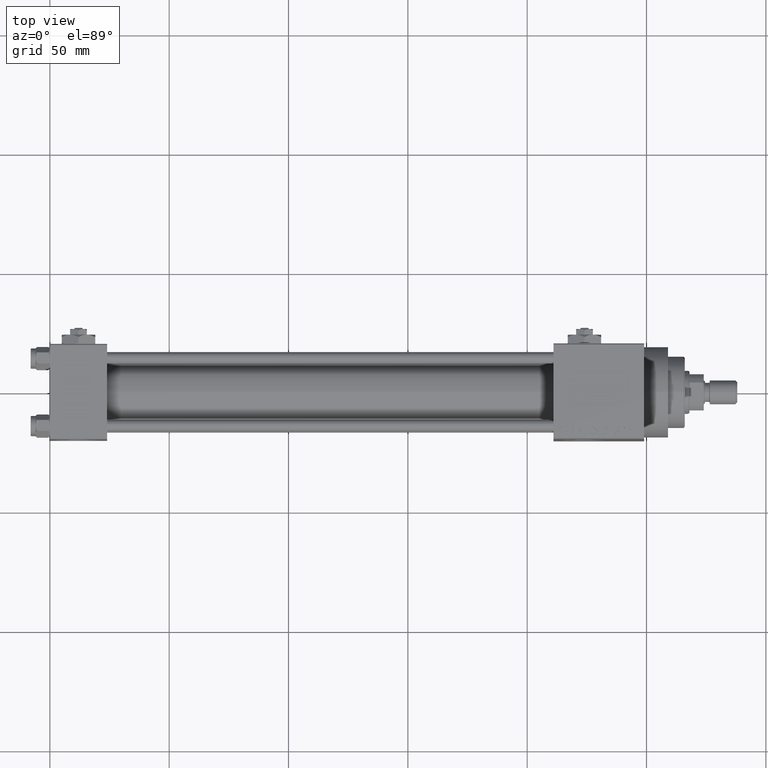
[diagram: clean part render]
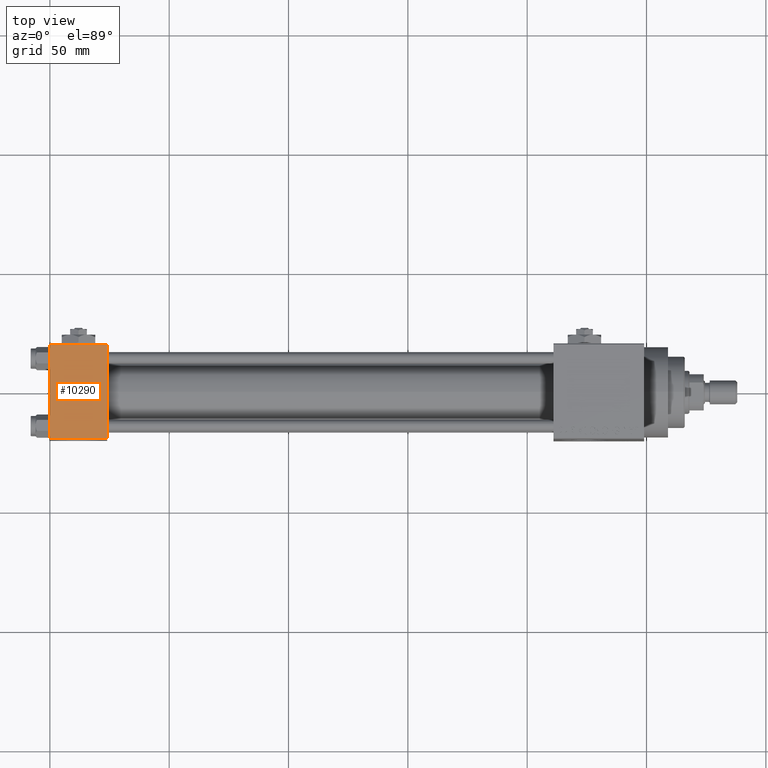
[diagram: same view with one face highlighted and labeled with its STEP entity id]
A machine part, top view. The second image highlights one B-rep face of the part: STEP entity #10290.
In plain terms, the highlighted planar face has unit normal (0, 0, -1).
Its self-contained STEP definition (entity closure, byte-faithful):
#67 = CARTESIAN_POINT ( 'NONE',  ( 24.00000000000000000, -19.49999999999999289, 19.99999999999998934 ) ) ;
#90 = FACE_OUTER_BOUND ( 'NONE', #43869, .T. ) ;
#1452 = EDGE_CURVE ( 'NONE', #47134, #10529, #2242, .T. ) ;
#2242 = LINE ( 'NONE', #9979, #9096 ) ;
#4194 = CARTESIAN_POINT ( 'NONE',  ( 24.00000000000000000, 20.00000000000000000, 20.00000000000000000 ) ) ;
#8080 = DIRECTION ( 'NONE',  ( 0.000000000000000000, 2.602085213965210149E-16, -1.000000000000000000 ) ) ;
#8926 = ORIENTED_EDGE ( 'NONE', *, *, #46260, .T. ) ;
#9096 = VECTOR ( 'NONE', #32256, 1000.000000000000000 ) ;
#9145 = DIRECTION ( 'NONE',  ( 0.000000000000000000, -1.000000000000000000, -2.602085213965210149E-16 ) ) ;
#9979 = CARTESIAN_POINT ( 'NONE',  ( 0.000000000000000000, 19.50000000000000000, 20.00000000000000000 ) ) ;
#10290 = ADVANCED_FACE ( 'NONE', ( #90 ), #27812, .F. ) ;
#10529 = VERTEX_POINT ( 'NONE', #48537 ) ;
#11991 = VECTOR ( 'NONE', #35174, 1000.000000000000000 ) ;
#14193 = ORIENTED_EDGE ( 'NONE', *, *, #1452, .T. ) ;
#15326 = CARTESIAN_POINT ( 'NONE',  ( 24.00000000000000000, 20.00000000000000000, 20.00000000000000000 ) ) ;
#15574 = DIRECTION ( 'NONE',  ( 0.000000000000000000, 1.000000000000000000, 2.602085213965210149E-16 ) ) ;
#15856 = CARTESIAN_POINT ( 'NONE',  ( 0.000000000000000000, -19.49999999999999289, 19.99999999999998934 ) ) ;
#17368 = VERTEX_POINT ( 'NONE', #39726 ) ;
#19439 = CARTESIAN_POINT ( 'NONE',  ( 24.00000000000000000, 19.50000000000000000, 20.00000000000000000 ) ) ;
#23374 = VERTEX_POINT ( 'NONE', #15856 ) ;
#27306 = DIRECTION ( 'NONE',  ( 1.000000000000000000, 0.000000000000000000, 0.000000000000000000 ) ) ;
#27812 = PLANE ( 'NONE',  #49341 ) ;
#27833 = VECTOR ( 'NONE', #9145, 1000.000000000000000 ) ;
#29048 = ORIENTED_EDGE ( 'NONE', *, *, #31025, .T. ) ;
#31025 = EDGE_CURVE ( 'NONE', #23374, #17368, #45816, .T. ) ;
#32256 = DIRECTION ( 'NONE',  ( -1.000000000000000000, 0.000000000000000000, 0.000000000000000000 ) ) ;
#35174 = DIRECTION ( 'NONE',  ( 0.000000000000000000, -1.000000000000000000, -2.602085213965210149E-16 ) ) ;
#37171 = ORIENTED_EDGE ( 'NONE', *, *, #49389, .F. ) ;
#38935 = LINE ( 'NONE', #4194, #11991 ) ;
#39726 = CARTESIAN_POINT ( 'NONE',  ( 24.00000000000000000, -19.49999999999999289, 19.99999999999998934 ) ) ;
#43307 = VECTOR ( 'NONE', #27306, 1000.000000000000000 ) ;
#43390 = CARTESIAN_POINT ( 'NONE',  ( 0.000000000000000000, 20.00000000000000000, 20.00000000000000000 ) ) ;
#43869 = EDGE_LOOP ( 'NONE', ( #8926, #29048, #37171, #14193 ) ) ;
#45075 = LINE ( 'NONE', #43390, #27833 ) ;
#45816 = LINE ( 'NONE', #67, #43307 ) ;
#46260 = EDGE_CURVE ( 'NONE', #10529, #23374, #45075, .T. ) ;
#47134 = VERTEX_POINT ( 'NONE', #19439 ) ;
#48537 = CARTESIAN_POINT ( 'NONE',  ( 0.000000000000000000, 19.50000000000000000, 20.00000000000000000 ) ) ;
#49341 = AXIS2_PLACEMENT_3D ( 'NONE', #15326, #8080, #15574 ) ;
#49389 = EDGE_CURVE ( 'NONE', #47134, #17368, #38935, .T. ) ;